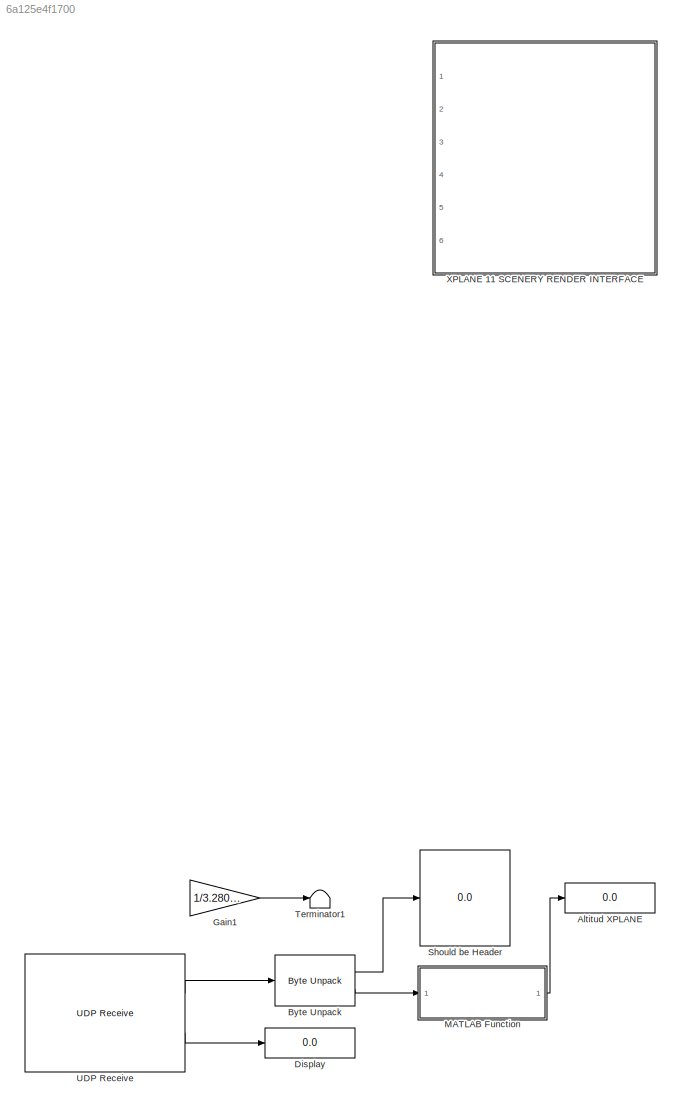
MODEL slx_6a125e4f1700
KIND model
CONFIG AbsTol = auto
CONFIG EnableMultiTasking = off
CONFIG FixedStep = 0.001
CONFIG MaxStep = auto
CONFIG MinStep = auto
CONFIG RelTol = 9e-3
CONFIG SampleTimeConstraint = Unconstrained
CONFIG Solver = ode23
CONFIG SolverName = ode23
CONFIG StartTime = 0
CONFIG StopTime = 500
WORKSPACE source: MAT-file member
WORKSPACE MCOS: class17 (value not decoded)
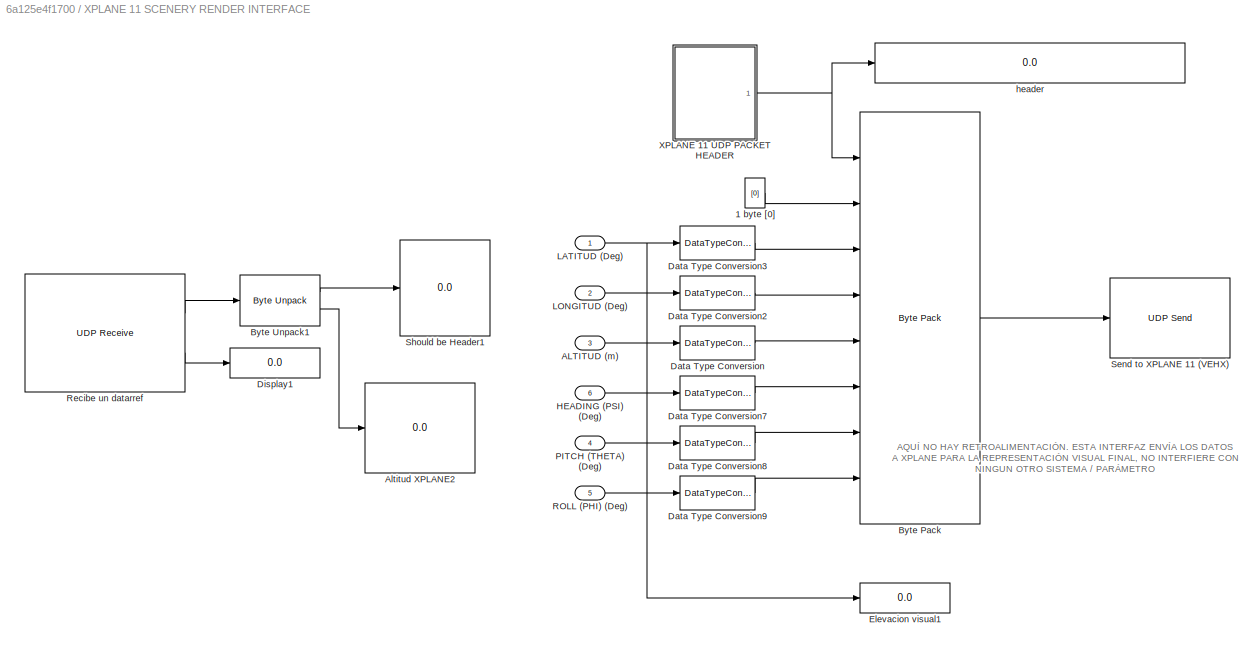
BLOCK [SubSystem]  XPLANE 11 SCENERY RENDER INTERFACE
  Ports = [6]
  RequestExecContextInheritance = off
BLOCK [Constant]  XPLANE 11 SCENERY RENDER INTERFACE/1 byte [0]
  OutDataTypeStr = single
  Value = [0]
BLOCK [Inport]  XPLANE 11 SCENERY RENDER INTERFACE/ALTITUD (m)
  IconDisplay = Port number
  Port = 3
BLOCK [Display]  XPLANE 11 SCENERY RENDER INTERFACE/Altitud XPLANE2
  Decimation = 5
  Format = long
  Ports = [1]
BLOCK [Reference]  XPLANE 11 SCENERY RENDER INTERFACE/Byte Pack  REF=etargetslib/Byte Pack
  Ports = [8, 1]
  SourceBlock = etargetslib/Byte Pack
  SourceProductBaseCode = ME
  SourceType = Byte pack
BLOCK [Reference]  XPLANE 11 SCENERY RENDER INTERFACE/Byte Unpack1  REF=etargetslib/Byte Unpack
  Ports = [1, 2]
  SourceBlock = etargetslib/Byte Unpack
  SourceProductBaseCode = ME
  SourceType = Byte Unpack
BLOCK [DataTypeConversion]  XPLANE 11 SCENERY RENDER INTERFACE/Data Type Conversion
  OutDataTypeStr = double
  RndMeth = Floor
  SaturateOnIntegerOverflow = off
BLOCK [DataTypeConversion]  XPLANE 11 SCENERY RENDER INTERFACE/Data Type Conversion2
  OutDataTypeStr = double
  RndMeth = Floor
  SaturateOnIntegerOverflow = off
BLOCK [DataTypeConversion]  XPLANE 11 SCENERY RENDER INTERFACE/Data Type Conversion3
  OutDataTypeStr = double
  RndMeth = Floor
  SaturateOnIntegerOverflow = off
BLOCK [DataTypeConversion]  XPLANE 11 SCENERY RENDER INTERFACE/Data Type Conversion7
  OutDataTypeStr = single
  RndMeth = Floor
  SaturateOnIntegerOverflow = off
BLOCK [DataTypeConversion]  XPLANE 11 SCENERY RENDER INTERFACE/Data Type Conversion8
  OutDataTypeStr = single
  RndMeth = Floor
  SaturateOnIntegerOverflow = off
BLOCK [DataTypeConversion]  XPLANE 11 SCENERY RENDER INTERFACE/Data Type Conversion9
  OutDataTypeStr = single
  RndMeth = Floor
  SaturateOnIntegerOverflow = off
BLOCK [Display]  XPLANE 11 SCENERY RENDER INTERFACE/Display1
  Decimation = 1
  Ports = [1]
BLOCK [Display]  XPLANE 11 SCENERY RENDER INTERFACE/Elevacion visual1
  Decimation = 1
  Ports = [1]
BLOCK [Inport]  XPLANE 11 SCENERY RENDER INTERFACE/HEADING (PSI) (Deg)
  IconDisplay = Port number
  Port = 6
BLOCK [Inport]  XPLANE 11 SCENERY RENDER INTERFACE/LATITUD (Deg)
  IconDisplay = Port number
BLOCK [Inport]  XPLANE 11 SCENERY RENDER INTERFACE/LONGITUD (Deg)
  IconDisplay = Port number
  Port = 2
BLOCK [Inport]  XPLANE 11 SCENERY RENDER INTERFACE/PITCH (THETA) (Deg)
  IconDisplay = Port number
  Port = 4
BLOCK [Inport]  XPLANE 11 SCENERY RENDER INTERFACE/ROLL (PHI) (Deg)
  IconDisplay = Port number
  Port = 5
BLOCK [Reference]  XPLANE 11 SCENERY RENDER INTERFACE/Recibe un datarref  REF=dspnetwork/UDP Receive
  Ports = [0, 2]
  SourceBlock = dspnetwork/UDP Receive
  SourceProductBaseCode = SL
  SourceType = UDP Receive
BLOCK [Reference]  XPLANE 11 SCENERY RENDER INTERFACE/Send to XPLANE 11 (VEHX)  REF=dspnetwork/UDP Send
  Ports = [1]
  SourceBlock = dspnetwork/UDP Send
  SourceProductBaseCode = SL
  SourceType = UDP Send
BLOCK [Display]  XPLANE 11 SCENERY RENDER INTERFACE/Should be Header1
  Decimation = 1
  Ports = [1]
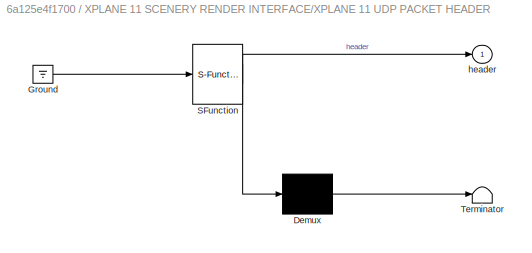
BLOCK [SubSystem]  XPLANE 11 SCENERY RENDER INTERFACE/XPLANE 11 UDP PACKET HEADER
  ErrorFcn = Stateflow.Translate.translate
  PermitHierarchicalResolution = ExplicitOnly
  Ports = [0, 1]
  RequestExecContextInheritance = off
  SFBlockType = MATLAB Function
  TreatAsAtomicUnit = on
BLOCK [Demux]  XPLANE 11 SCENERY RENDER INTERFACE/XPLANE 11 UDP PACKET HEADER/ Demux 
  DisplayOption = bar
  Outputs = 1
  Ports = [1, 1]
BLOCK [Ground]  XPLANE 11 SCENERY RENDER INTERFACE/XPLANE 11 UDP PACKET HEADER/ Ground 
BLOCK [S-Function]  XPLANE 11 SCENERY RENDER INTERFACE/XPLANE 11 UDP PACKET HEADER/ SFunction 
  EnableBusSupport = on
  FunctionName = sf_sfun
  PortCounts = [1 2]
  Ports = [1, 2]
  SFcnIsStateOwnerBlock = off
  SFunctionDeploymentMode = off
  Tag = Stateflow S-Function XPlaneVisualRender 1
BLOCK [Terminator]  XPLANE 11 SCENERY RENDER INTERFACE/XPLANE 11 UDP PACKET HEADER/ Terminator 
BLOCK [Outport]  XPLANE 11 SCENERY RENDER INTERFACE/XPLANE 11 UDP PACKET HEADER/header
  IconDisplay = Port number
BLOCK [Display]  XPLANE 11 SCENERY RENDER INTERFACE/header
  Decimation = 1
  Ports = [1]
BLOCK [Display] Altitud XPLANE
  Commented = on
  Decimation = 1
  Ports = [1]
BLOCK [Reference] Byte Unpack  REF=etargetslib/Byte Unpack
  Commented = on
  Ports = [1, 2]
  SourceBlock = etargetslib/Byte Unpack
  SourceProductBaseCode = ME
  SourceType = Byte Unpack
BLOCK [Display] Display
  Commented = on
  Decimation = 1
  Ports = [1]
BLOCK [Gain] Gain1
  Commented = on
  Gain = 1/3.28084
  OutDataTypeStr = Inherit: Inherit via internal rule
  ParamDataTypeStr = Inherit: Inherit via internal rule
  SaturateOnIntegerOverflow = off
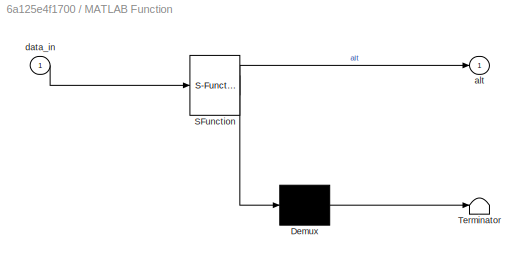
BLOCK [SubSystem] MATLAB Function
  Commented = on
  ErrorFcn = Stateflow.Translate.translate
  PermitHierarchicalResolution = ExplicitOnly
  Ports = [1, 1]
  RequestExecContextInheritance = off
  SFBlockType = MATLAB Function
  TreatAsAtomicUnit = on
BLOCK [Demux] MATLAB Function/ Demux 
  DisplayOption = bar
  Outputs = 1
  Ports = [1, 1]
BLOCK [S-Function] MATLAB Function/ SFunction 
  EnableBusSupport = on
  FunctionName = sf_sfun
  PortCounts = [1 2]
  Ports = [1, 2]
  SFcnIsStateOwnerBlock = off
  SFunctionDeploymentMode = off
  Tag = Stateflow S-Function XPlaneVisualRender 2
BLOCK [Terminator] MATLAB Function/ Terminator 
BLOCK [Outport] MATLAB Function/alt
  IconDisplay = Port number
BLOCK [Inport] MATLAB Function/data_in
  IconDisplay = Port number
BLOCK [Display] Should be Header
  Commented = on
  Decimation = 1
  Ports = [1]
BLOCK [Terminator] Terminator1
  Commented = on
BLOCK [Reference] UDP Receive  REF=dspnetwork/UDP Receive
  Commented = on
  Ports = [0, 2]
  SourceBlock = dspnetwork/UDP Receive
  SourceProductBaseCode = SL
  SourceType = UDP Receive
ANNOTATION  XPLANE 11 SCENERY RENDER INTERFACE: AQUÍ NO HAY RETROALIMENTACIÓN. ESTA INTERFAZ ENVÍA LOS DATOS A XPLANE PARA LA REPRESENTACIÓN VISUAL FINAL, NO INTERFIERE CON NINGUN OTRO SISTEMA / PARÁMETRO
LINE  XPLANE 11 SCENERY RENDER INTERFACE/1 byte [0]:1 ->  XPLANE 11 SCENERY RENDER INTERFACE/Byte Pack:2
LINE  XPLANE 11 SCENERY RENDER INTERFACE/ALTITUD (m):1 ->  XPLANE 11 SCENERY RENDER INTERFACE/Data Type Conversion:1
LINE  XPLANE 11 SCENERY RENDER INTERFACE/Byte Pack:1 ->  XPLANE 11 SCENERY RENDER INTERFACE/Send to XPLANE 11 (VEHX):1
LINE  XPLANE 11 SCENERY RENDER INTERFACE/Byte Unpack1:1 ->  XPLANE 11 SCENERY RENDER INTERFACE/Should be Header1:1
LINE  XPLANE 11 SCENERY RENDER INTERFACE/Byte Unpack1:2 ->  XPLANE 11 SCENERY RENDER INTERFACE/Altitud XPLANE2:1
LINE  XPLANE 11 SCENERY RENDER INTERFACE/Data Type Conversion2:1 ->  XPLANE 11 SCENERY RENDER INTERFACE/Byte Pack:4
LINE  XPLANE 11 SCENERY RENDER INTERFACE/Data Type Conversion3:1 ->  XPLANE 11 SCENERY RENDER INTERFACE/Byte Pack:3
LINE  XPLANE 11 SCENERY RENDER INTERFACE/Data Type Conversion7:1 ->  XPLANE 11 SCENERY RENDER INTERFACE/Byte Pack:6
LINE  XPLANE 11 SCENERY RENDER INTERFACE/Data Type Conversion8:1 ->  XPLANE 11 SCENERY RENDER INTERFACE/Byte Pack:7
LINE  XPLANE 11 SCENERY RENDER INTERFACE/Data Type Conversion9:1 ->  XPLANE 11 SCENERY RENDER INTERFACE/Byte Pack:8
LINE  XPLANE 11 SCENERY RENDER INTERFACE/Data Type Conversion:1 ->  XPLANE 11 SCENERY RENDER INTERFACE/Byte Pack:5
LINE  XPLANE 11 SCENERY RENDER INTERFACE/HEADING (PSI) (Deg):1 ->  XPLANE 11 SCENERY RENDER INTERFACE/Data Type Conversion7:1
NET  XPLANE 11 SCENERY RENDER INTERFACE/LATITUD (Deg):1 ->  XPLANE 11 SCENERY RENDER INTERFACE/Data Type Conversion3:1,  XPLANE 11 SCENERY RENDER INTERFACE/Elevacion visual1:1
LINE  XPLANE 11 SCENERY RENDER INTERFACE/LONGITUD (Deg):1 ->  XPLANE 11 SCENERY RENDER INTERFACE/Data Type Conversion2:1
LINE  XPLANE 11 SCENERY RENDER INTERFACE/PITCH (THETA) (Deg):1 ->  XPLANE 11 SCENERY RENDER INTERFACE/Data Type Conversion8:1
LINE  XPLANE 11 SCENERY RENDER INTERFACE/ROLL (PHI) (Deg):1 ->  XPLANE 11 SCENERY RENDER INTERFACE/Data Type Conversion9:1
LINE  XPLANE 11 SCENERY RENDER INTERFACE/Recibe un datarref:1 ->  XPLANE 11 SCENERY RENDER INTERFACE/Byte Unpack1:1
LINE  XPLANE 11 SCENERY RENDER INTERFACE/Recibe un datarref:2 ->  XPLANE 11 SCENERY RENDER INTERFACE/Display1:1
NET  XPLANE 11 SCENERY RENDER INTERFACE/XPLANE 11 UDP PACKET HEADER:1 ->  XPLANE 11 SCENERY RENDER INTERFACE/Byte Pack:1,  XPLANE 11 SCENERY RENDER INTERFACE/header:1
LINE Byte Unpack:1 -> Should be Header:1
LINE Byte Unpack:2 -> MATLAB Function:1
LINE Gain1:1 -> Terminator1:1
LINE MATLAB Function:1 -> Altitud XPLANE:1
LINE UDP Receive:1 -> Byte Unpack:1
LINE UDP Receive:2 -> Display:1
note: NET lines group one-source signal fan-out (src -> all destinations, sorted); 1:1 wires keep LINE
CHART 
XPLANE 11 SCENERY RENDER INTERFACE/XPLANE 11 UDP PACKET HEADER states=1 transitions=1
  STATE_LABEL 'eML_blk_kernel()'
  STATE_LABEL "SCRIPT:\nfunction header  = fcn \nheader =[uint8(86) uint8(69) uint8(72) uint8(88) uint8(48)];\n\n %Surface_header = typecast(uint8([uint8(8) uint8(0) uint8(0) uint8(0)]),'single')\n%surfaces_control_cmd = [0 dat_lat dat_lon dat_ele veh_psi_true veh_the veh_phi];\n%Throttle_header = typecast(uint8([uint8(25) uint8(0) uint8(0) uint8(0)]),'single');\n%throttle_cmd = [3.503246160812043e-44 throttle No_Coman...<+67ch>"
CHART MATLAB Function states=1 transitions=1
  STATE_LABEL 'eML_blk_kernel()'
  STATE_LABEL 'SCRIPT:\nfunction alt  = decoder(data_in)\n alt = data_in(1,4);\n\nend\n'
